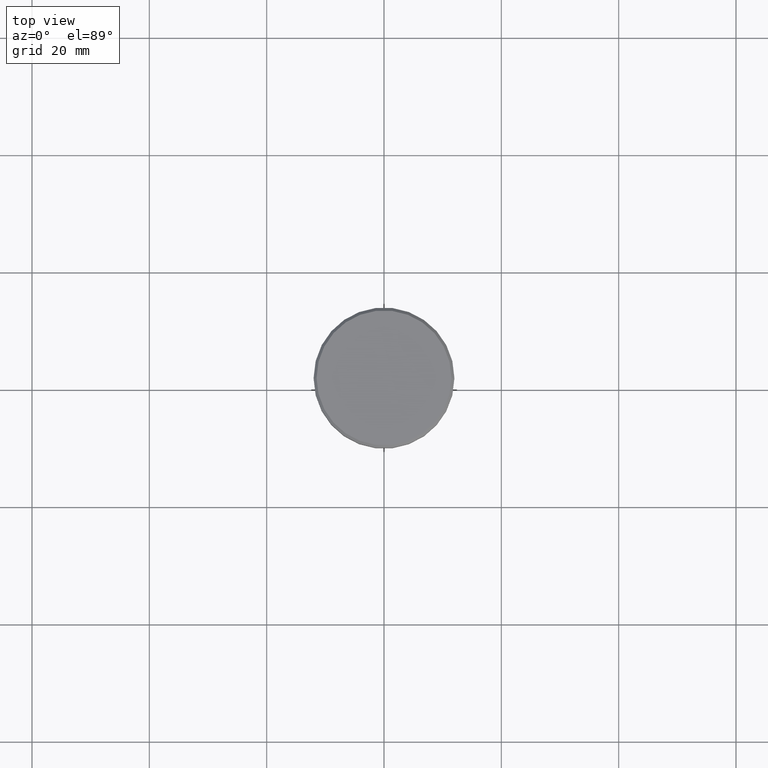
[diagram: clean part render]
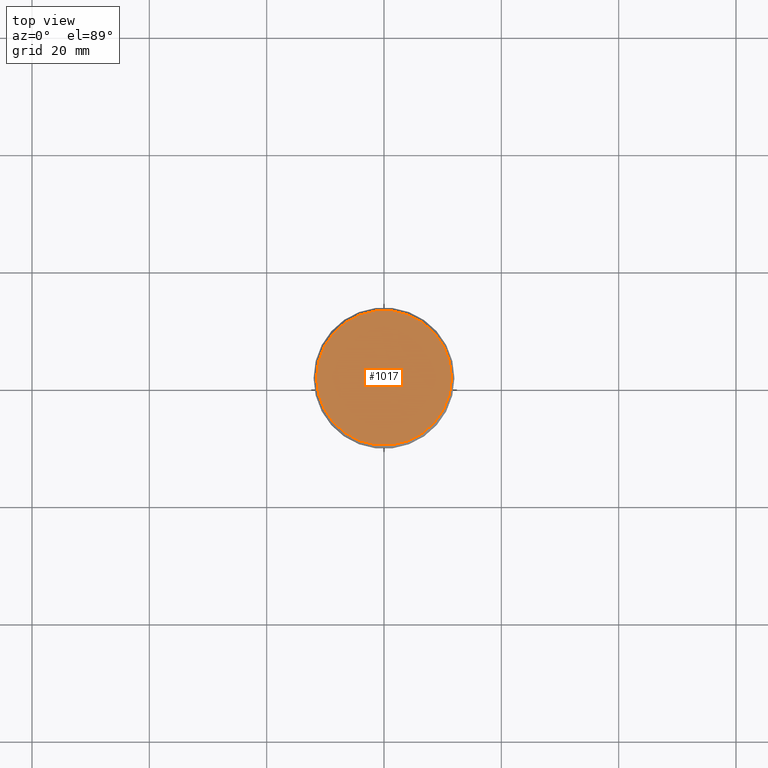
[diagram: same view with one face highlighted and labeled with its STEP entity id]
A machine part, top view. The second image highlights one B-rep face of the part: STEP entity #1017.
In plain terms, the highlighted planar face has unit normal (0, -0, 1).
Its self-contained STEP definition (entity closure, byte-faithful):
#61 = CARTESIAN_POINT ( 'NONE',  ( 0.000000000000000000, 0.000000000000000000, 0.000000000000000000 ) ) ;
#72 = CARTESIAN_POINT ( 'NONE',  ( -11.50000000000000888, 0.000000000000000000, 0.000000000000000000 ) ) ;
#180 = CIRCLE ( 'NONE', #427, 11.50000000000000888 ) ;
#320 = DIRECTION ( 'NONE',  ( 0.000000000000000000, -0.000000000000000000, 1.000000000000000000 ) ) ;
#390 = DIRECTION ( 'NONE',  ( 1.000000000000000000, 0.000000000000000000, 0.000000000000000000 ) ) ;
#407 = AXIS2_PLACEMENT_3D ( 'NONE', #1141, #320, #868 ) ;
#417 = DIRECTION ( 'NONE',  ( -0.000000000000000000, -0.000000000000000000, 1.000000000000000000 ) ) ;
#427 = AXIS2_PLACEMENT_3D ( 'NONE', #61, #417, #1148 ) ;
#433 = VERTEX_POINT ( 'NONE', #72 ) ;
#591 = PLANE ( 'NONE',  #407 ) ;
#608 = EDGE_LOOP ( 'NONE', ( #1085, #639 ) ) ;
#639 = ORIENTED_EDGE ( 'NONE', *, *, #1025, .T. ) ;
#746 = VERTEX_POINT ( 'NONE', #1044 ) ;
#840 = CARTESIAN_POINT ( 'NONE',  ( 0.000000000000000000, 0.000000000000000000, 0.000000000000000000 ) ) ;
#847 = DIRECTION ( 'NONE',  ( -0.000000000000000000, -0.000000000000000000, 1.000000000000000000 ) ) ;
#849 = CIRCLE ( 'NONE', #1172, 11.50000000000000888 ) ;
#865 = EDGE_CURVE ( 'NONE', #433, #746, #849, .T. ) ;
#868 = DIRECTION ( 'NONE',  ( 1.000000000000000000, 0.000000000000000000, 0.000000000000000000 ) ) ;
#1017 = ADVANCED_FACE ( 'NONE', ( #1161 ), #591, .T. ) ;
#1025 = EDGE_CURVE ( 'NONE', #746, #433, #180, .T. ) ;
#1044 = CARTESIAN_POINT ( 'NONE',  ( 11.50000000000000888, 1.438959988998140752E-15, 0.000000000000000000 ) ) ;
#1085 = ORIENTED_EDGE ( 'NONE', *, *, #865, .T. ) ;
#1141 = CARTESIAN_POINT ( 'NONE',  ( 0.000000000000000000, 0.000000000000000000, 0.000000000000000000 ) ) ;
#1148 = DIRECTION ( 'NONE',  ( 1.000000000000000000, 0.000000000000000000, 0.000000000000000000 ) ) ;
#1161 = FACE_OUTER_BOUND ( 'NONE', #608, .T. ) ;
#1172 = AXIS2_PLACEMENT_3D ( 'NONE', #840, #847, #390 ) ;